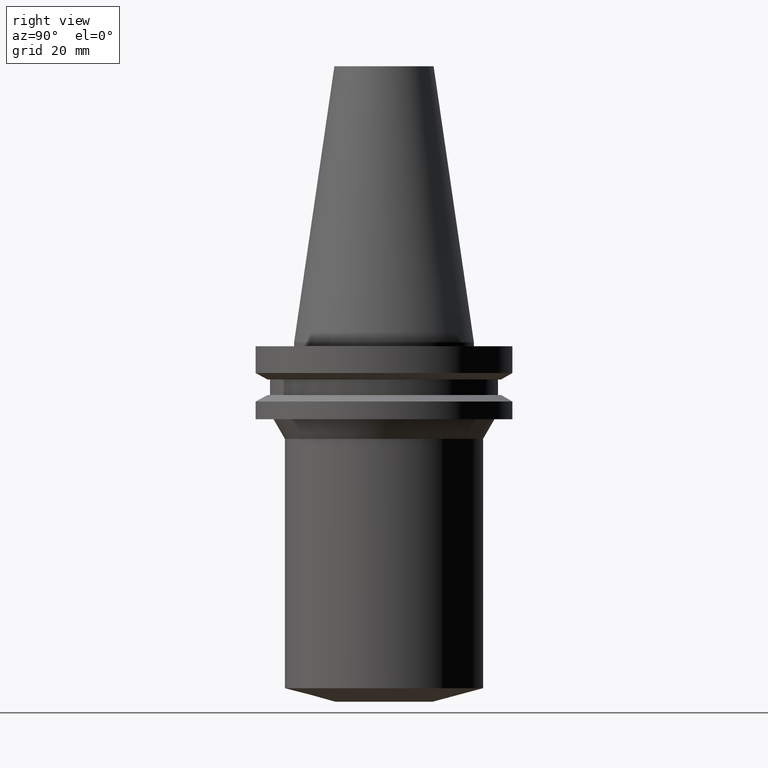
[diagram: clean part render]
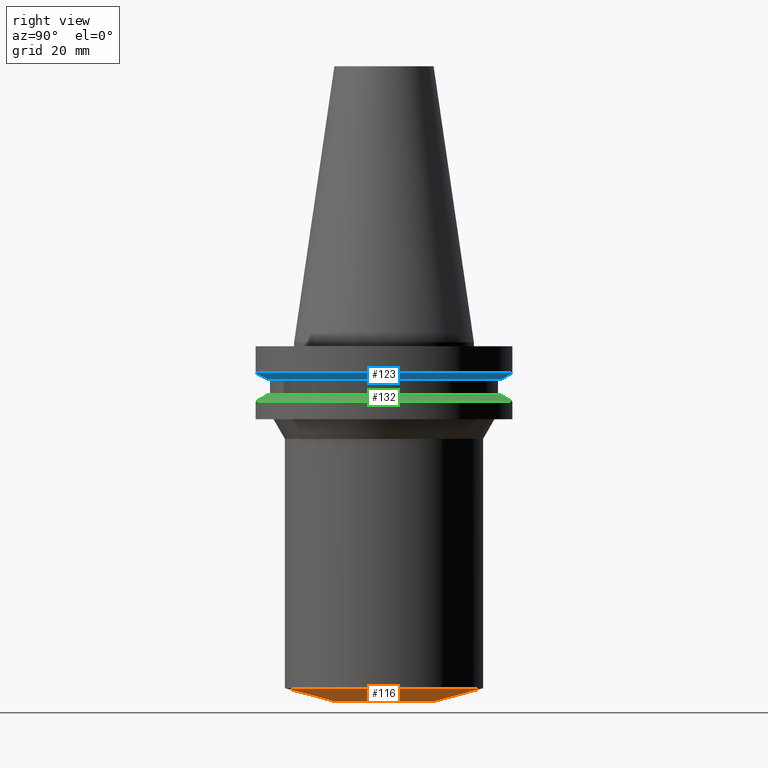
[diagram: same view with three faces highlighted in distinct colors, each labeled with its STEP entity id]
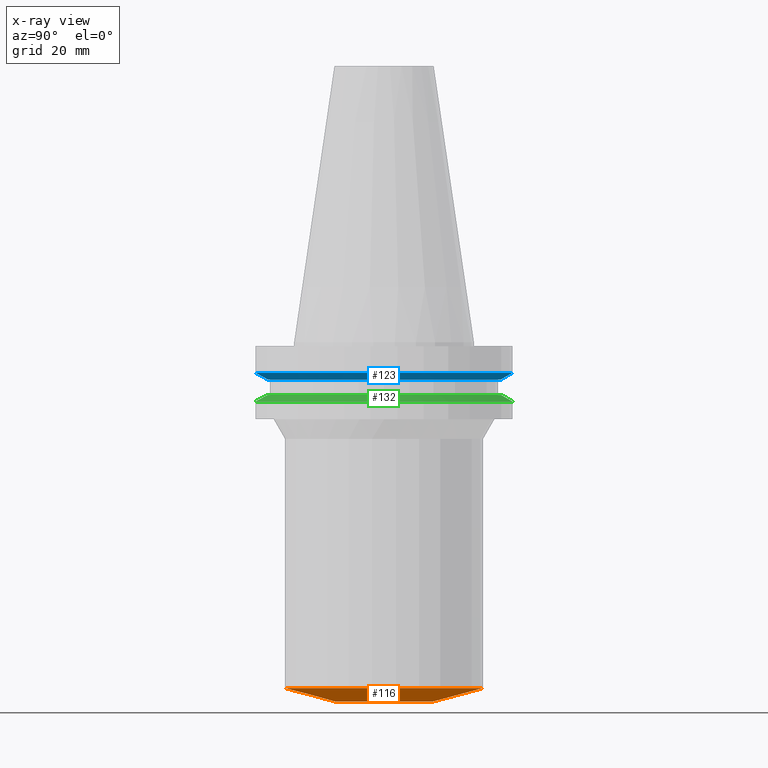
[diagram: x-ray of the same camera — body ghosted, the three highlighted faces saturated]
A machine part, right view with three faces highlighted in distinct colors.
The next image is the same camera in x-ray (body ghosted, the three faces saturated) — at least one of them is partly hidden behind the body in this view.
Their STEP definitions:

[orange] entity #116 — the highlighted conical surface has half-angle 75 deg.
#63=EDGE_CURVE('Unnamed[1]',#164,#164,#165,.T.);
#89=EDGE_CURVE('Unnamed[1]',#205,#205,#206,.T.);
#116=ADVANCED_FACE('Unnamed[1]',(#247,#248),#249,.T.);
#164=VERTEX_POINT('',#300);
#165=CIRCLE('',#301,24.5000000000476);
#205=VERTEX_POINT('',#351);
#206=CIRCLE('',#352,12.0000000000065);
#247=FACE_BOUND('',#403,.T.);
#248=FACE_BOUND('',#404,.T.);
#249=CONICAL_SURFACE('',#405,18.2500000000271,1.30899693899528);
#300=CARTESIAN_POINT('',(5.23846557168079E-015,24.5000000000476,-85.5506350945924));
#301=AXIS2_PLACEMENT_3D('',#454,#455,#456);
#351=CARTESIAN_POINT('',(5.44355502220991E-015,12.0000000000065,-88.8999999999987));
#352=AXIS2_PLACEMENT_3D('',#501,#502,#503);
#403=EDGE_LOOP('',(#549));
#404=EDGE_LOOP('',(#550));
#405=AXIS2_PLACEMENT_3D('',#551,#552,#553);
#454=CARTESIAN_POINT('',(5.23846557168079E-015,1.04769311433616E-014,-85.5506350945924));
#455=DIRECTION('',(6.12323399573677E-017,1.22464679914735E-016,-1.0));
#456=DIRECTION('',(-1.23259516440783E-032,1.0,1.22464679914735E-016));
#501=CARTESIAN_POINT('',(5.44355502220991E-015,1.08871100444198E-014,-88.8999999999987));
#502=DIRECTION('',(6.12323399573677E-017,1.22464679914735E-016,-1.0));
#503=DIRECTION('',(-1.23259516440783E-032,1.0,1.22464679914735E-016));
#549=ORIENTED_EDGE('',*,*,#89,.F.);
#550=ORIENTED_EDGE('',*,*,#63,.T.);
#551=CARTESIAN_POINT('',(5.34101029694535E-015,1.06820205938907E-014,-87.2253175472955));
#552=DIRECTION('',(-6.12323399573677E-017,-1.22464679914735E-016,1.0));
#553=DIRECTION('',(-1.23259516440783E-032,1.0,1.22464679914735E-016));

[blue] entity #123 — the highlighted conical surface has half-angle 60 deg.
#70=EDGE_CURVE('Unnamed[1]',#175,#175,#176,.T.);
#96=EDGE_CURVE('Unnamed[1]',#216,#216,#217,.T.);
#123=ADVANCED_FACE('Unnamed[1]',(#258,#259),#260,.T.);
#175=VERTEX_POINT('',#314);
#176=CIRCLE('',#315,28.98016191);
#216=VERTEX_POINT('',#365);
#217=CIRCLE('',#366,31.75);
#258=FACE_BOUND('',#417,.T.);
#259=FACE_BOUND('',#418,.T.);
#260=CONICAL_SURFACE('',#419,30.365080955,1.04719755034994);
#314=CARTESIAN_POINT('',(5.63337527607782E-016,28.98016191,-9.2));
#315=AXIS2_PLACEMENT_3D('',#466,#467,#468);
#365=CARTESIAN_POINT('',(4.65416804298617E-016,31.75,-7.60083323));
#366=AXIS2_PLACEMENT_3D('',#513,#514,#515);
#417=EDGE_LOOP('',(#561));
#418=EDGE_LOOP('',(#562));
#419=AXIS2_PLACEMENT_3D('',#563,#564,#565);
#466=CARTESIAN_POINT('',(5.63337527607783E-016,1.12667505521557E-015,-9.2));
#467=DIRECTION('',(6.12323399573677E-017,1.22464679914735E-016,-1.0));
#468=DIRECTION('',(-1.23259516440783E-032,1.0,1.22464679914735E-016));
#513=CARTESIAN_POINT('',(4.65416804298617E-016,9.30833608597234E-016,-7.60083323000001));
#514=DIRECTION('',(6.12323399573677E-017,1.22464679914735E-016,-1.0));
#515=DIRECTION('',(-1.23259516440783E-032,1.0,1.22464679914735E-016));
#561=ORIENTED_EDGE('',*,*,#70,.F.);
#562=ORIENTED_EDGE('',*,*,#96,.T.);
#563=CARTESIAN_POINT('',(5.143771659532E-016,1.0287543319064E-015,-8.40041661500001));
#564=DIRECTION('',(-6.12323399573677E-017,-1.22464679914735E-016,1.0));
#565=DIRECTION('',(-1.23259516440783E-032,1.0,1.22464679914735E-016));

[green] entity #132 — the highlighted conical surface has half-angle 60 deg.
#118=EDGE_CURVE('Unnamed[1]',#251,#251,#252,.T.);
#125=EDGE_CURVE('Unnamed[1]',#262,#262,#263,.T.);
#132=ADVANCED_FACE('Unnamed[1]',(#272,#273),#274,.T.);
#251=VERTEX_POINT('',#408);
#252=CIRCLE('',#409,28.95591319);
#262=VERTEX_POINT('',#422);
#263=CIRCLE('',#423,31.75);
#272=FACE_BOUND('',#435,.T.);
#273=FACE_BOUND('',#436,.T.);
#274=CONICAL_SURFACE('',#437,30.352956595,1.04719755170464);
#408=CARTESIAN_POINT('',(7.98469713044073E-016,28.95591319,-13.04));
#409=AXIS2_PLACEMENT_3D('',#554,#555,#556);
#422=CARTESIAN_POINT('',(8.97247689112643E-016,31.75,-14.65316677));
#423=AXIS2_PLACEMENT_3D('',#566,#567,#568);
#435=EDGE_LOOP('',(#576));
#436=EDGE_LOOP('',(#577));
#437=AXIS2_PLACEMENT_3D('',#578,#579,#580);
#554=CARTESIAN_POINT('',(7.98469713044074E-016,1.59693942608815E-015,-13.04));
#555=DIRECTION('',(6.12323399573677E-017,1.22464679914735E-016,-1.0));
#556=DIRECTION('',(-1.23259516440783E-032,1.0,1.22464679914735E-016));
#566=CARTESIAN_POINT('',(8.97247689112643E-016,1.79449537822529E-015,-14.65316677));
#567=DIRECTION('',(6.12323399573677E-017,1.22464679914735E-016,-1.0));
#568=DIRECTION('',(-1.23259516440783E-032,1.0,1.22464679914735E-016));
#576=ORIENTED_EDGE('',*,*,#125,.F.);
#577=ORIENTED_EDGE('',*,*,#118,.T.);
#578=CARTESIAN_POINT('',(8.47858701078359E-016,1.69571740215672E-015,-13.846583385));
#579=DIRECTION('',(6.12323399573677E-017,1.22464679914735E-016,-1.0));
#580=DIRECTION('',(-1.23259516440783E-032,1.0,1.22464679914735E-016));